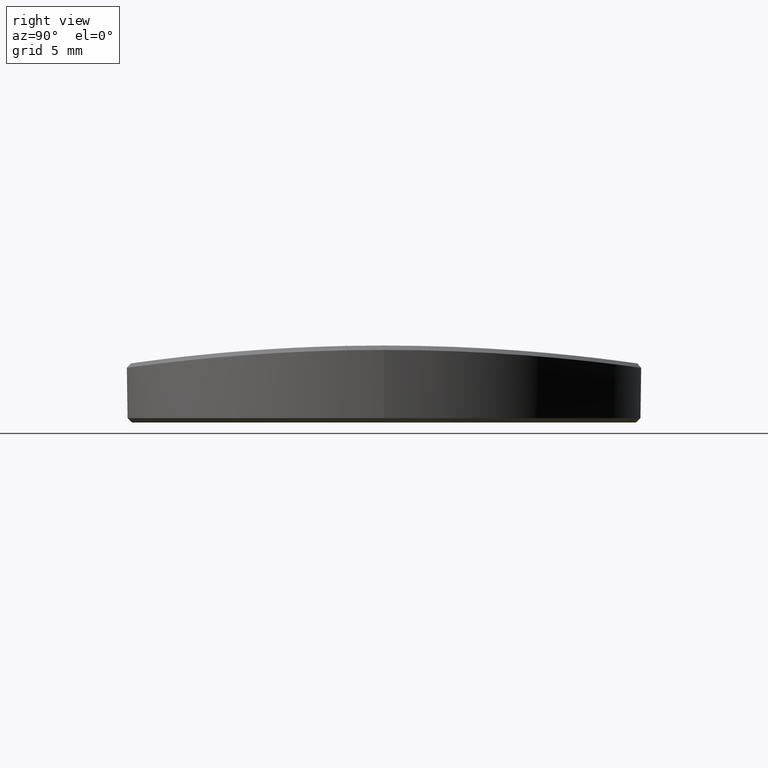
[diagram: clean part render]
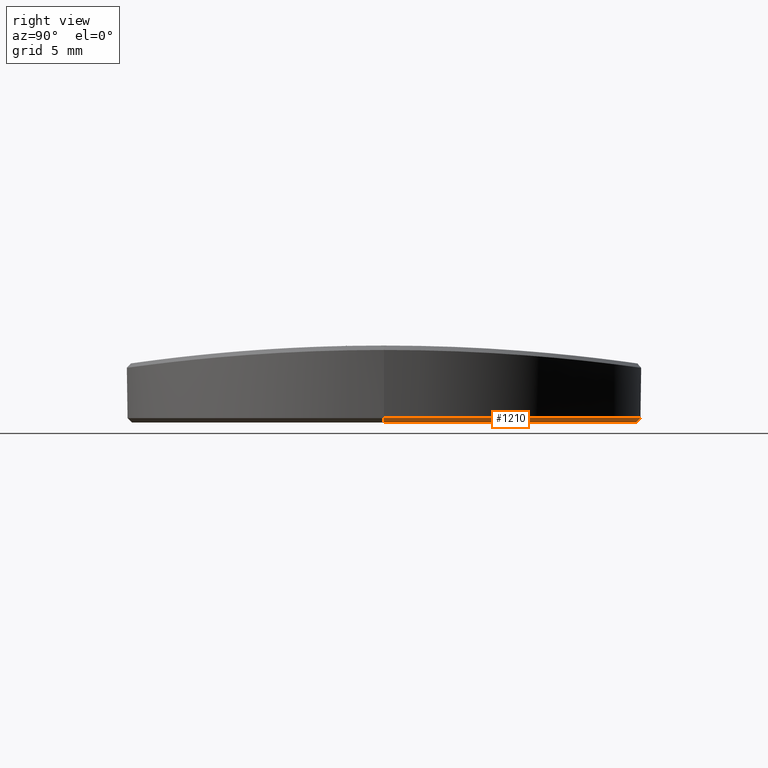
[diagram: same view with one face highlighted and labeled with its STEP entity id]
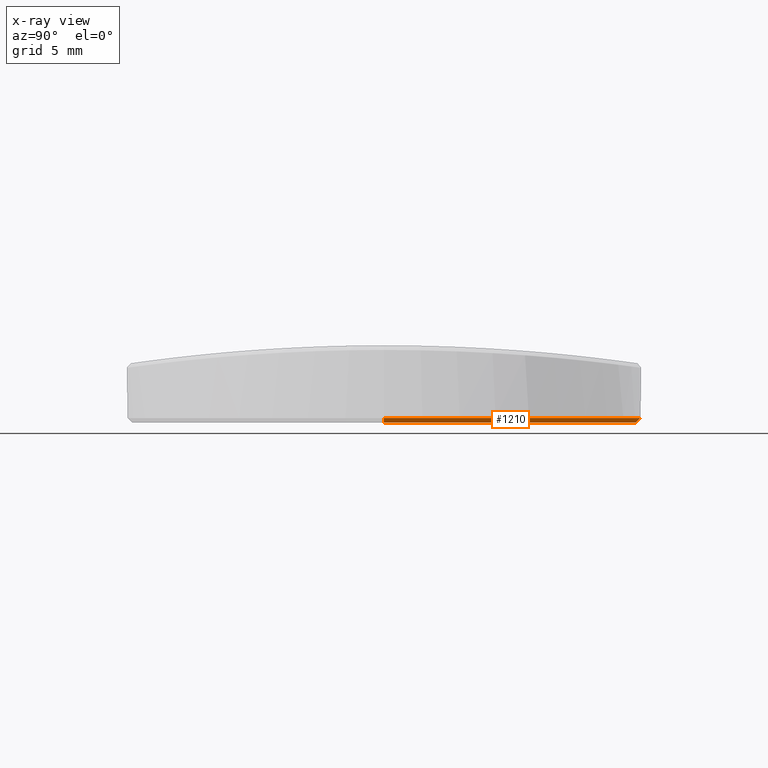
[diagram: x-ray of the same camera — body ghosted, the highlighted face saturated]
A machine part, right view. The second image highlights one B-rep face of the part: STEP entity #1210.
The next image is the same camera in x-ray: the body ghosted, the highlighted face saturated — about 0% of this face is hidden behind the body in this view.
In plain terms, the highlighted conical surface has half-angle 45 deg.
Its self-contained STEP definition (entity closure, byte-faithful):
#76 = CARTESIAN_POINT ( 'NONE',  ( 0.000000000000000000, 0.000000000000000000, 0.000000000000000000 ) ) ;
#94 = ORIENTED_EDGE ( 'NONE', *, *, #2387, .F. ) ;
#188 = CARTESIAN_POINT ( 'NONE',  ( 11.69999999999999929, 0.000000000000000000, 0.2000000000000005107 ) ) ;
#279 = EDGE_CURVE ( 'NONE', #848, #699, #1546, .T. ) ;
#396 = VECTOR ( 'NONE', #1694, 1000.000000000000000 ) ;
#585 = CARTESIAN_POINT ( 'NONE',  ( 0.000000000000000000, 0.000000000000000000, 0.2000000000000005107 ) ) ;
#617 = EDGE_CURVE ( 'NONE', #699, #2062, #1368, .T. ) ;
#671 = ORIENTED_EDGE ( 'NONE', *, *, #1788, .T. ) ;
#699 = VERTEX_POINT ( 'NONE', #1765 ) ;
#720 = CARTESIAN_POINT ( 'NONE',  ( -11.69999999999999929, 1.432836755002403087E-15, 0.2000000000000005107 ) ) ;
#809 = CONICAL_SURFACE ( 'NONE', #2392, 11.69999999999999929, 0.7853981633974439491 ) ;
#845 = DIRECTION ( 'NONE',  ( 1.000000000000000000, 0.000000000000000000, 0.000000000000000000 ) ) ;
#848 = VERTEX_POINT ( 'NONE', #1325 ) ;
#883 = LINE ( 'NONE', #720, #396 ) ;
#964 = CIRCLE ( 'NONE', #1535, 11.50000000000000000 ) ;
#1014 = CARTESIAN_POINT ( 'NONE',  ( -11.69999999999999929, 0.000000000000000000, 0.2000000000000005107 ) ) ;
#1077 = EDGE_LOOP ( 'NONE', ( #94, #671, #2251, #1282 ) ) ;
#1198 = DIRECTION ( 'NONE',  ( -0.000000000000000000, -0.000000000000000000, 1.000000000000000000 ) ) ;
#1203 = AXIS2_PLACEMENT_3D ( 'NONE', #585, #1352, #1729 ) ;
#1210 = ADVANCED_FACE ( 'NONE', ( #2379 ), #809, .T. ) ;
#1224 = CARTESIAN_POINT ( 'NONE',  ( 0.000000000000000000, 0.000000000000000000, 0.2000000000000005107 ) ) ;
#1282 = ORIENTED_EDGE ( 'NONE', *, *, #279, .F. ) ;
#1325 = CARTESIAN_POINT ( 'NONE',  ( 11.50000000000000000, 0.000000000000000000, 0.000000000000000000 ) ) ;
#1352 = DIRECTION ( 'NONE',  ( -0.000000000000000000, -0.000000000000000000, 1.000000000000000000 ) ) ;
#1368 = CIRCLE ( 'NONE', #1203, 11.69999999999999929 ) ;
#1426 = CARTESIAN_POINT ( 'NONE',  ( -11.50000000000000000, 1.420590287010929533E-15, 0.000000000000000000 ) ) ;
#1535 = AXIS2_PLACEMENT_3D ( 'NONE', #76, #1680, #845 ) ;
#1546 = LINE ( 'NONE', #188, #2161 ) ;
#1680 = DIRECTION ( 'NONE',  ( -0.000000000000000000, -0.000000000000000000, -1.000000000000000000 ) ) ;
#1694 = DIRECTION ( 'NONE',  ( -0.7071067811865444641, 8.659560562354895880E-17, 0.7071067811865505703 ) ) ;
#1729 = DIRECTION ( 'NONE',  ( 1.000000000000000000, 0.000000000000000000, 0.000000000000000000 ) ) ;
#1749 = DIRECTION ( 'NONE',  ( 0.7071067811865444641, 0.000000000000000000, 0.7071067811865505703 ) ) ;
#1765 = CARTESIAN_POINT ( 'NONE',  ( 11.69999999999999929, 1.432836755002403087E-15, 0.2000000000000005107 ) ) ;
#1788 = EDGE_CURVE ( 'NONE', #2073, #2062, #883, .T. ) ;
#1800 = DIRECTION ( 'NONE',  ( 1.000000000000000000, 0.000000000000000000, 0.000000000000000000 ) ) ;
#2062 = VERTEX_POINT ( 'NONE', #1014 ) ;
#2073 = VERTEX_POINT ( 'NONE', #1426 ) ;
#2161 = VECTOR ( 'NONE', #1749, 1000.000000000000000 ) ;
#2251 = ORIENTED_EDGE ( 'NONE', *, *, #617, .F. ) ;
#2379 = FACE_OUTER_BOUND ( 'NONE', #1077, .T. ) ;
#2387 = EDGE_CURVE ( 'NONE', #2073, #848, #964, .T. ) ;
#2392 = AXIS2_PLACEMENT_3D ( 'NONE', #1224, #1198, #1800 ) ;